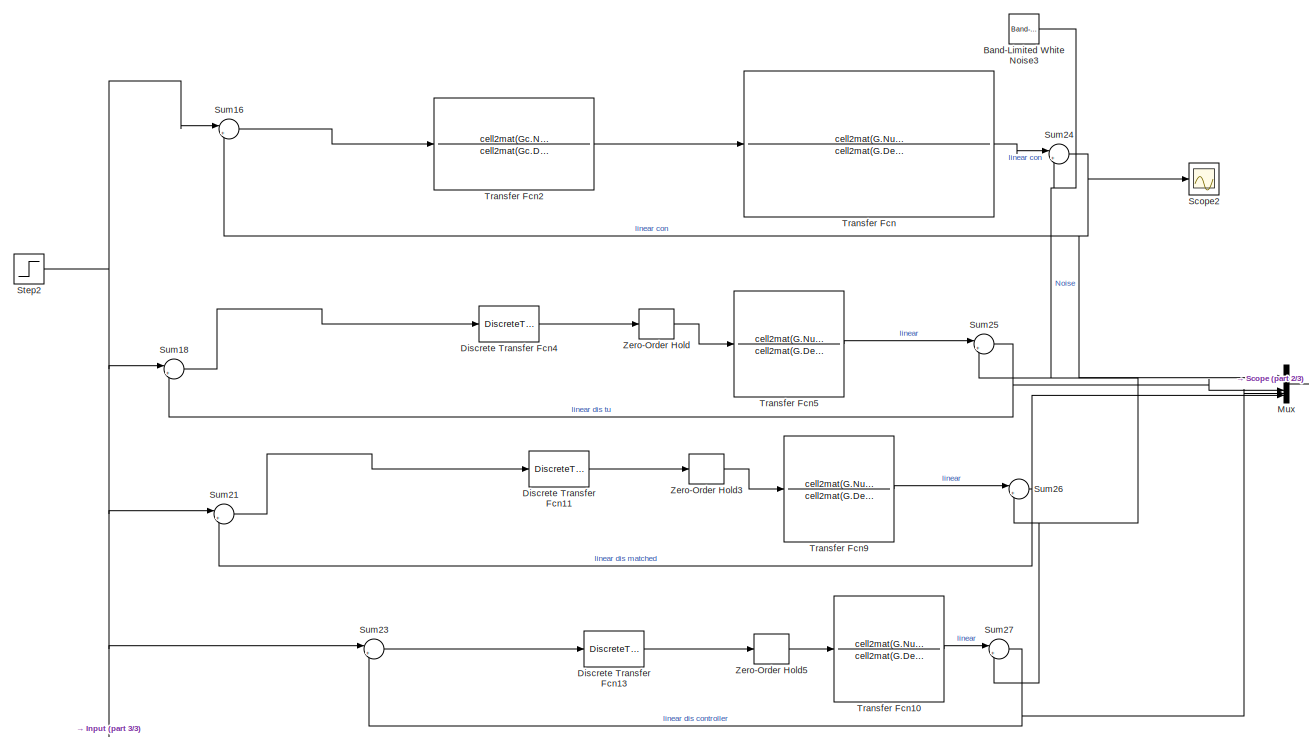
[diagram: root canvas - part 1/3, full width, top band]
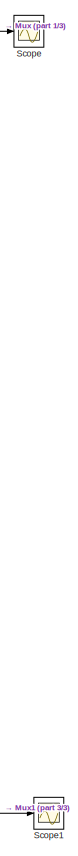
[diagram: root canvas - part 2/3, middle right region]
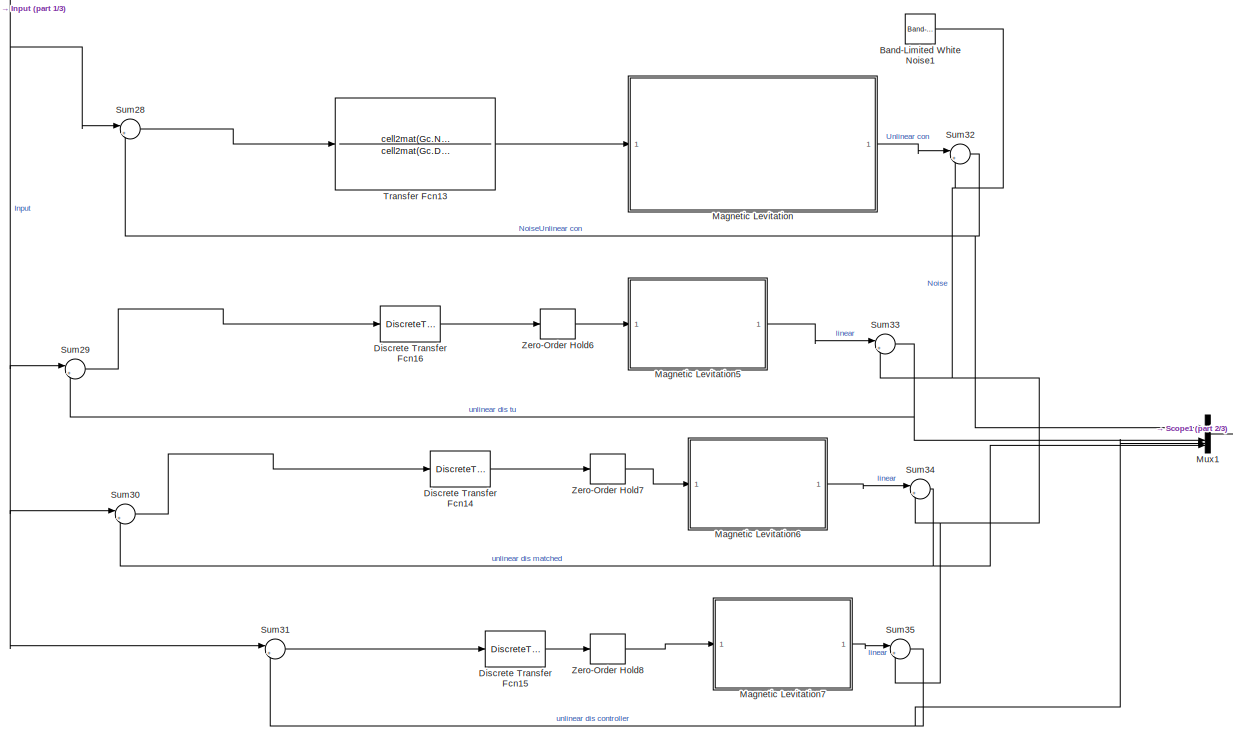
[diagram: root canvas - part 3/3, full width, bottom band]
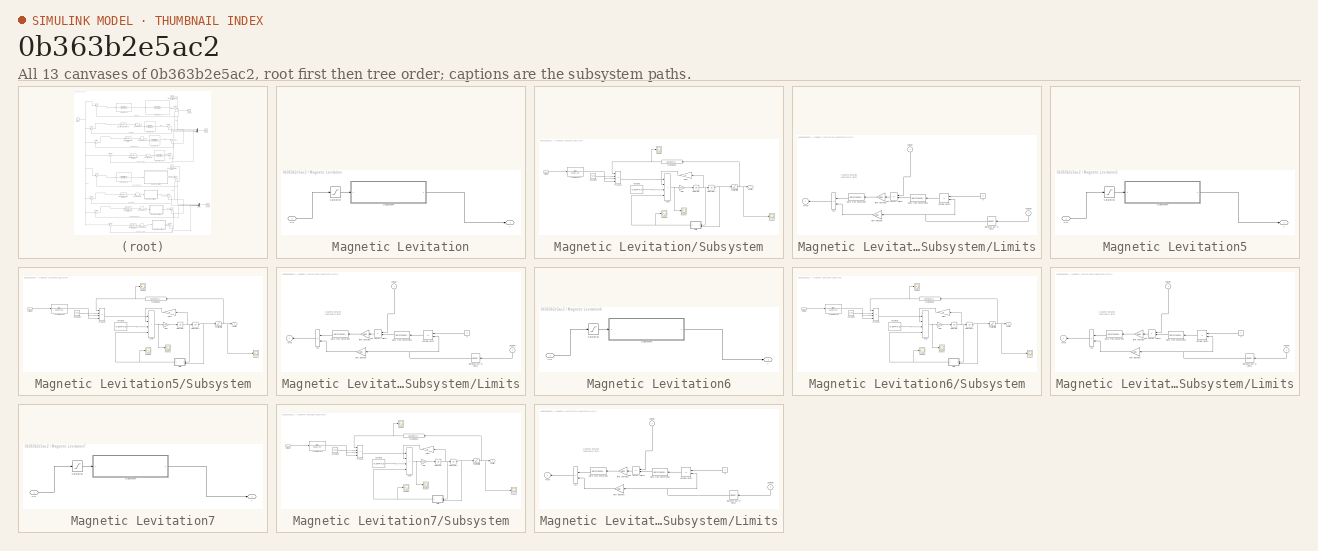
[diagram: thumbnail index - all 13 canvases of the model, root first then tree order]
MODEL slx_0b363b2e5ac2
KIND model
CONFIG AbsTol = auto
CONFIG EnableMultiTasking = off
CONFIG FixedStep = auto
CONFIG MaxStep = auto
CONFIG MinStep = auto
CONFIG RelTol = 1e-3
CONFIG SampleTimeConstraint = Unconstrained
CONFIG SolverName = VariableStepAuto
CONFIG StartTime = 0.0
CONFIG StopTime = 5
BLOCK [Reference] Band-Limited White Noise1  REF=simulink/Sources/Band-Limited
White Noise
  SourceBlock = simulink/Sources/Band-Limited\nWhite Noise
  SourceType = Band-Limited White Noise.
BLOCK [Reference] Band-Limited White Noise3  REF=simulink/Sources/Band-Limited
White Noise
  SourceBlock = simulink/Sources/Band-Limited\nWhite Noise
  SourceType = Band-Limited White Noise.
BLOCK [DiscreteTransferFcn] Discrete Transfer Fcn11
  Denominator = cell2mat(Gc_z2.Denominator)
  InputPortMap = u0
  Numerator = cell2mat(Gc_z2.Numerator)
BLOCK [DiscreteTransferFcn] Discrete Transfer Fcn13
  Denominator = cell2mat(Gc_z_designed.Denominator)
  InputPortMap = u0
  Numerator = cell2mat(Gc_z_designed.Numerator)
BLOCK [DiscreteTransferFcn] Discrete Transfer Fcn14
  Denominator = cell2mat(Gc_z2.Denominator)
  InputPortMap = u0
  Numerator = cell2mat(Gc_z2.Numerator)
BLOCK [DiscreteTransferFcn] Discrete Transfer Fcn15
  Denominator = cell2mat(Gc_z_designed.Denominator)
  InputPortMap = u0
  Numerator = cell2mat(Gc_z_designed.Numerator)
BLOCK [DiscreteTransferFcn] Discrete Transfer Fcn16
  Denominator = cell2mat(Gc_z1.Denominator)
  InputPortMap = u0
  Numerator = cell2mat(Gc_z1.Numerator)
BLOCK [DiscreteTransferFcn] Discrete Transfer Fcn4
  Denominator = cell2mat(Gc_z1.Denominator)
  InputPortMap = u0
  Numerator = cell2mat(Gc_z1.Numerator)
BLOCK [SubSystem] Magnetic Levitation
  Permissions = NoReadOrWrite
BLOCK [Saturate] Magnetic Levitation/Saturation
  LowerLimit = -6
  UpperLimit = 10
  ZeroCross = off
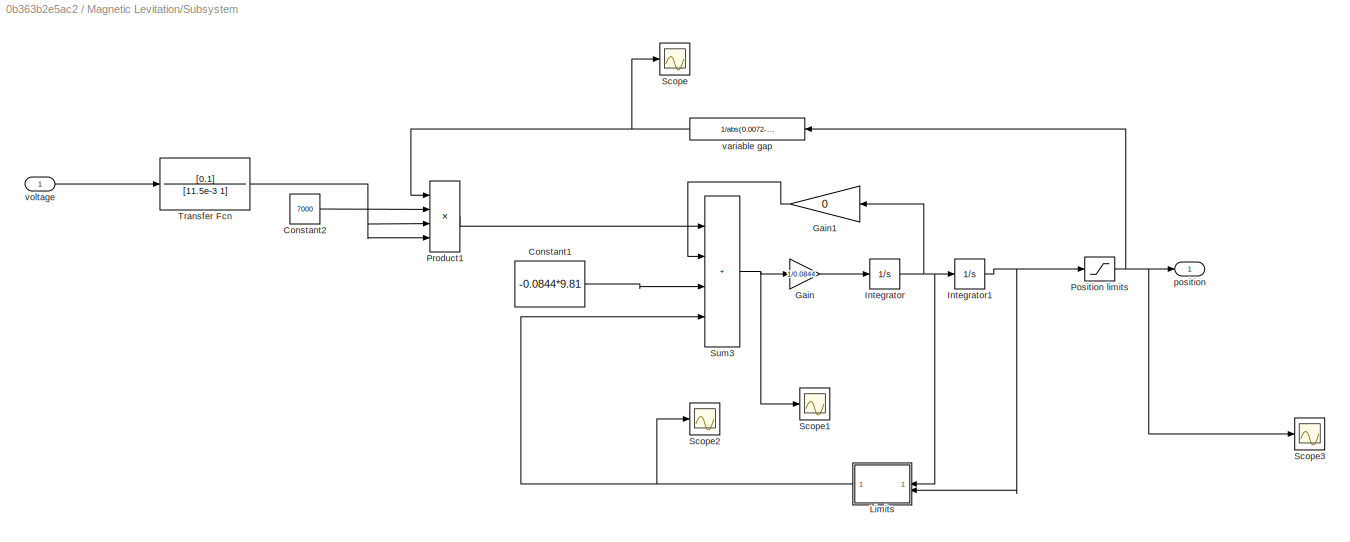
BLOCK [SubSystem] Magnetic Levitation/Subsystem
BLOCK [Constant] Magnetic Levitation/Subsystem/Constant1
  Value = -0.0844*9.81
BLOCK [Constant] Magnetic Levitation/Subsystem/Constant2
  Value = 7000
BLOCK [Gain] Magnetic Levitation/Subsystem/Gain
  Gain = 1/0.0844
BLOCK [Gain] Magnetic Levitation/Subsystem/Gain1
  Gain = 0
  NameLocation = top
BLOCK [Integrator] Magnetic Levitation/Subsystem/Integrator
BLOCK [Integrator] Magnetic Levitation/Subsystem/Integrator1
  LimitOutput = on
  LowerSaturationLimit = 0
  UpperSaturationLimit = 0.005
BLOCK [SubSystem] Magnetic Levitation/Subsystem/Limits
  ShowPortLabels = none
BLOCK [Constant] Magnetic Levitation/Subsystem/Limits/0
  Value = 0
BLOCK [DataTypeConversion] Magnetic Levitation/Subsystem/Limits/Data Type Conversion
  NameLocation = top
  OutDataTypeStr = double
  RndMeth = Floor
  SaturateOnIntegerOverflow = off
BLOCK [DataTypeConversion] Magnetic Levitation/Subsystem/Limits/Data Type Conversion1
  NameLocation = top
  OutDataTypeStr = double
  RndMeth = Floor
  SaturateOnIntegerOverflow = off
BLOCK [DeadZone] Magnetic Levitation/Subsystem/Limits/Distance out of limits
  LowerValue = 0.0002
  UpperValue = 5e-3
  ZeroCross = off
BLOCK [Sum] Magnetic Levitation/Subsystem/Limits/Fc1
  IconShape = rectangular
  InputSameDT = on
  Inputs = --
  OutDataTypeStr = Inherit: Same as first input
  SaturateOnIntegerOverflow = on
BLOCK [Product] Magnetic Levitation/Subsystem/Limits/Just on//off switch 
  InputSameDT = on
  OutDataTypeStr = Inherit: Same as first input
  SaturateOnIntegerOverflow = on
BLOCK [RelationalOperator] Magnetic Levitation/Subsystem/Limits/Outside Limits
  Operator = ~=
BLOCK [Outport] Magnetic Levitation/Subsystem/Limits/force
  VectorParamsAs1DForOutWhenUnconnected = off
BLOCK [Gain] Magnetic Levitation/Subsystem/Limits/limit damping
  Gain = 2800
  OutDataTypeStr = Inherit: Same as input
  ParamDataTypeStr = Inherit: Same as input
  SaturateOnIntegerOverflow = on
BLOCK [Gain] Magnetic Levitation/Subsystem/Limits/limit elasticity
  Gain = 500
  OutDataTypeStr = Inherit: Same as input
  ParamDataTypeStr = Inherit: Same as input
  SaturateOnIntegerOverflow = on
BLOCK [Inport] Magnetic Levitation/Subsystem/Limits/position
  NameLocation = right
  Port = 2
BLOCK [Inport] Magnetic Levitation/Subsystem/Limits/velocity
  NameLocation = right
BLOCK [Saturate] Magnetic Levitation/Subsystem/Position limits
  LowerLimit = 0.00001
  UpperLimit = 0.00499
  ZeroCross = off
BLOCK [Product] Magnetic Levitation/Subsystem/Product1
  Inputs = 4
BLOCK [Scope] Magnetic Levitation/Subsystem/Scope
  Floating = off
  NumInputPorts = 1
  ScopeSpecificationString = Simulink.scopes.TimeScopeBlockCfg('CurrentConfiguration', extmgr.ConfigurationSet(extmgr.Configuration('Core','General UI',true),extmgr.Configuration('Core','Source UI',true),extmgr.Configuration('Sources','WiredSimulink',true,'DataLoggingVariableName','ScopeData1'),extmgr.Configuration('Visuals','Time Domain',true,'SerializedDisplays',{struct('MinYLimReal','-40.54054','MaxYLimReal','374.87487','Y...<+1381ch>  <repeated x4 — deduplicated; at blocks: Scope>
BLOCK [Scope] Magnetic Levitation/Subsystem/Scope1
  Floating = off
  NumInputPorts = 1
  ScopeSpecificationString = Simulink.scopes.TimeScopeBlockCfg('CurrentConfiguration', extmgr.ConfigurationSet(extmgr.Configuration('Core','General UI',true),extmgr.Configuration('Core','Source UI',true),extmgr.Configuration('Sources','WiredSimulink',true,'DataLoggingVariableName','ScopeData2'),extmgr.Configuration('Visuals','Time Domain',true,'SerializedDisplays',{struct('MinYLimReal','-21376391083219120442781708779858395089...<+3841ch>  <repeated x4 — deduplicated; at blocks: Scope1>
BLOCK [Scope] Magnetic Levitation/Subsystem/Scope2
  Floating = off
  NumInputPorts = 1
  ScopeSpecificationString = Simulink.scopes.TimeScopeBlockCfg('CurrentConfiguration', extmgr.ConfigurationSet(extmgr.Configuration('Core','General UI',true),extmgr.Configuration('Core','Source UI',true),extmgr.Configuration('Sources','WiredSimulink',true,'DataLoggingVariableName','ScopeData3'),extmgr.Configuration('Visuals','Time Domain',true,'SerializedDisplays',{struct('MinYLimReal','-0.1107','MaxYLimReal','1.19629','YLabe...<+1363ch>  <repeated x4 — deduplicated; at blocks: Scope2>
BLOCK [Scope] Magnetic Levitation/Subsystem/Scope3
  Floating = off
  NumInputPorts = 1
  ScopeSpecificationString = Simulink.scopes.TimeScopeBlockCfg('CurrentConfiguration', extmgr.ConfigurationSet(extmgr.Configuration('Core','General UI',true),extmgr.Configuration('Core','Source UI',true),extmgr.Configuration('Sources','WiredSimulink',true,'DataLoggingVariableName','ScopeData2'),extmgr.Configuration('Visuals','Time Domain',true,'SerializedDisplays',{struct('MinYLimReal','-0.00029','MaxYLimReal','0.00267','YLab...<+1402ch>  <repeated x4 — deduplicated; at blocks: Scope3>
BLOCK [Sum] Magnetic Levitation/Subsystem/Sum3
  IconShape = rectangular
  Inputs = ++++
BLOCK [TransferFcn] Magnetic Levitation/Subsystem/Transfer Fcn
  Denominator = [11.5e-3 1]
  Numerator = [0.1]
BLOCK [Outport] Magnetic Levitation/Subsystem/position 
  VectorParamsAs1DForOutWhenUnconnected = off
BLOCK [Fcn] Magnetic Levitation/Subsystem/variable gap
  Expr = 1/abs(0.0072-u)
BLOCK [Inport] Magnetic Levitation/Subsystem/voltage
BLOCK [Inport] Magnetic Levitation/Vin
BLOCK [Outport] Magnetic Levitation/y
  VectorParamsAs1DForOutWhenUnconnected = off
BLOCK [SubSystem] Magnetic Levitation5
  Permissions = NoReadOrWrite
BLOCK [Saturate] Magnetic Levitation5/Saturation
  LowerLimit = -6
  UpperLimit = 10
  ZeroCross = off
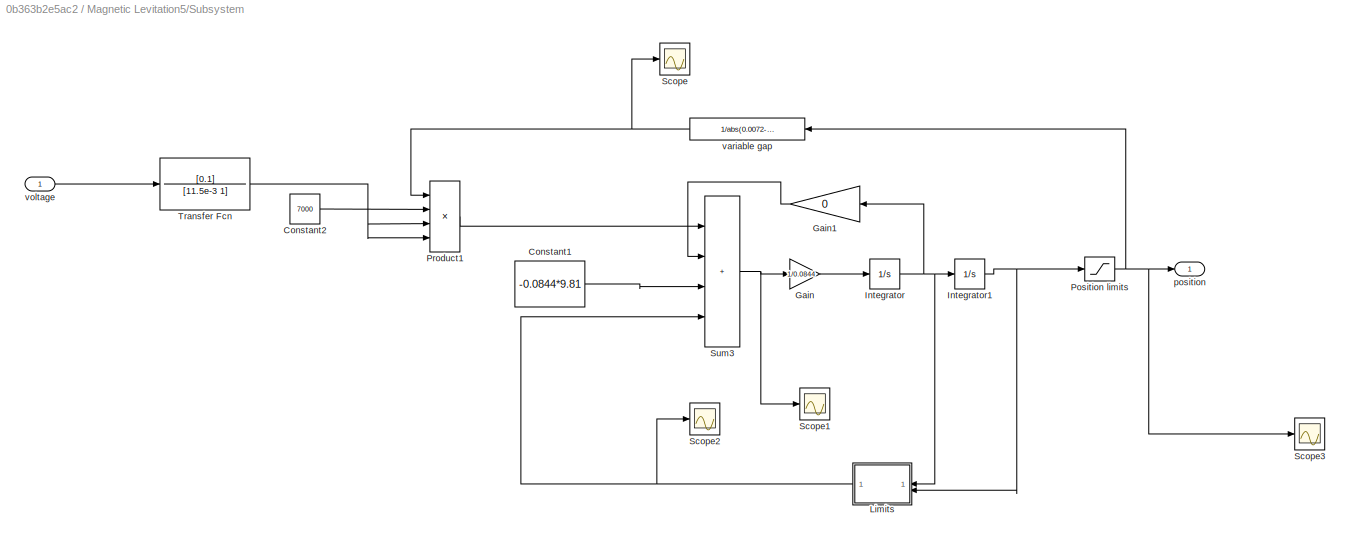
BLOCK [SubSystem] Magnetic Levitation5/Subsystem
BLOCK [Constant] Magnetic Levitation5/Subsystem/Constant1
  Value = -0.0844*9.81
BLOCK [Constant] Magnetic Levitation5/Subsystem/Constant2
  Value = 7000
BLOCK [Gain] Magnetic Levitation5/Subsystem/Gain
  Gain = 1/0.0844
BLOCK [Gain] Magnetic Levitation5/Subsystem/Gain1
  Gain = 0
  NameLocation = top
BLOCK [Integrator] Magnetic Levitation5/Subsystem/Integrator
BLOCK [Integrator] Magnetic Levitation5/Subsystem/Integrator1
  LimitOutput = on
  LowerSaturationLimit = 0
  UpperSaturationLimit = 0.005
BLOCK [SubSystem] Magnetic Levitation5/Subsystem/Limits
  ShowPortLabels = none
BLOCK [Constant] Magnetic Levitation5/Subsystem/Limits/0
  Value = 0
BLOCK [DataTypeConversion] Magnetic Levitation5/Subsystem/Limits/Data Type Conversion
  NameLocation = top
  OutDataTypeStr = double
  RndMeth = Floor
  SaturateOnIntegerOverflow = off
BLOCK [DataTypeConversion] Magnetic Levitation5/Subsystem/Limits/Data Type Conversion1
  NameLocation = top
  OutDataTypeStr = double
  RndMeth = Floor
  SaturateOnIntegerOverflow = off
BLOCK [DeadZone] Magnetic Levitation5/Subsystem/Limits/Distance out of limits
  LowerValue = 0.0002
  UpperValue = 5e-3
  ZeroCross = off
BLOCK [Sum] Magnetic Levitation5/Subsystem/Limits/Fc1
  IconShape = rectangular
  InputSameDT = on
  Inputs = --
  OutDataTypeStr = Inherit: Same as first input
  SaturateOnIntegerOverflow = on
BLOCK [Product] Magnetic Levitation5/Subsystem/Limits/Just on//off switch 
  InputSameDT = on
  OutDataTypeStr = Inherit: Same as first input
  SaturateOnIntegerOverflow = on
BLOCK [RelationalOperator] Magnetic Levitation5/Subsystem/Limits/Outside Limits
  Operator = ~=
BLOCK [Outport] Magnetic Levitation5/Subsystem/Limits/force
  VectorParamsAs1DForOutWhenUnconnected = off
BLOCK [Gain] Magnetic Levitation5/Subsystem/Limits/limit damping
  Gain = 2800
  OutDataTypeStr = Inherit: Same as input
  ParamDataTypeStr = Inherit: Same as input
  SaturateOnIntegerOverflow = on
BLOCK [Gain] Magnetic Levitation5/Subsystem/Limits/limit elasticity
  Gain = 500
  OutDataTypeStr = Inherit: Same as input
  ParamDataTypeStr = Inherit: Same as input
  SaturateOnIntegerOverflow = on
BLOCK [Inport] Magnetic Levitation5/Subsystem/Limits/position
  NameLocation = right
  Port = 2
BLOCK [Inport] Magnetic Levitation5/Subsystem/Limits/velocity
  NameLocation = right
BLOCK [Saturate] Magnetic Levitation5/Subsystem/Position limits
  LowerLimit = 0.00001
  UpperLimit = 0.00499
  ZeroCross = off
BLOCK [Product] Magnetic Levitation5/Subsystem/Product1
  Inputs = 4
BLOCK [Scope] Magnetic Levitation5/Subsystem/Scope
  Floating = off
  NumInputPorts = 1
BLOCK [Scope] Magnetic Levitation5/Subsystem/Scope1
  Floating = off
  NumInputPorts = 1
BLOCK [Scope] Magnetic Levitation5/Subsystem/Scope2
  Floating = off
  NumInputPorts = 1
BLOCK [Scope] Magnetic Levitation5/Subsystem/Scope3
  Floating = off
  NumInputPorts = 1
BLOCK [Sum] Magnetic Levitation5/Subsystem/Sum3
  IconShape = rectangular
  Inputs = ++++
BLOCK [TransferFcn] Magnetic Levitation5/Subsystem/Transfer Fcn
  Denominator = [11.5e-3 1]
  Numerator = [0.1]
BLOCK [Outport] Magnetic Levitation5/Subsystem/position 
  VectorParamsAs1DForOutWhenUnconnected = off
BLOCK [Fcn] Magnetic Levitation5/Subsystem/variable gap
  Expr = 1/abs(0.0072-u)
BLOCK [Inport] Magnetic Levitation5/Subsystem/voltage
BLOCK [Inport] Magnetic Levitation5/Vin
BLOCK [Outport] Magnetic Levitation5/y
  VectorParamsAs1DForOutWhenUnconnected = off
BLOCK [SubSystem] Magnetic Levitation6
  Permissions = NoReadOrWrite
BLOCK [Saturate] Magnetic Levitation6/Saturation
  LowerLimit = -6
  UpperLimit = 10
  ZeroCross = off
BLOCK [SubSystem] Magnetic Levitation6/Subsystem
BLOCK [Constant] Magnetic Levitation6/Subsystem/Constant1
  Value = -0.0844*9.81
BLOCK [Constant] Magnetic Levitation6/Subsystem/Constant2
  Value = 7000
BLOCK [Gain] Magnetic Levitation6/Subsystem/Gain
  Gain = 1/0.0844
BLOCK [Gain] Magnetic Levitation6/Subsystem/Gain1
  Gain = 0
  NameLocation = top
BLOCK [Integrator] Magnetic Levitation6/Subsystem/Integrator
BLOCK [Integrator] Magnetic Levitation6/Subsystem/Integrator1
  LimitOutput = on
  LowerSaturationLimit = 0
  UpperSaturationLimit = 0.005
BLOCK [SubSystem] Magnetic Levitation6/Subsystem/Limits
  ShowPortLabels = none
BLOCK [Constant] Magnetic Levitation6/Subsystem/Limits/0
  Value = 0
BLOCK [DataTypeConversion] Magnetic Levitation6/Subsystem/Limits/Data Type Conversion
  NameLocation = top
  OutDataTypeStr = double
  RndMeth = Floor
  SaturateOnIntegerOverflow = off
BLOCK [DataTypeConversion] Magnetic Levitation6/Subsystem/Limits/Data Type Conversion1
  NameLocation = top
  OutDataTypeStr = double
  RndMeth = Floor
  SaturateOnIntegerOverflow = off
BLOCK [DeadZone] Magnetic Levitation6/Subsystem/Limits/Distance out of limits
  LowerValue = 0.0002
  UpperValue = 5e-3
  ZeroCross = off
BLOCK [Sum] Magnetic Levitation6/Subsystem/Limits/Fc1
  IconShape = rectangular
  InputSameDT = on
  Inputs = --
  OutDataTypeStr = Inherit: Same as first input
  SaturateOnIntegerOverflow = on
BLOCK [Product] Magnetic Levitation6/Subsystem/Limits/Just on//off switch 
  InputSameDT = on
  OutDataTypeStr = Inherit: Same as first input
  SaturateOnIntegerOverflow = on
BLOCK [RelationalOperator] Magnetic Levitation6/Subsystem/Limits/Outside Limits
  Operator = ~=
BLOCK [Outport] Magnetic Levitation6/Subsystem/Limits/force
  VectorParamsAs1DForOutWhenUnconnected = off
BLOCK [Gain] Magnetic Levitation6/Subsystem/Limits/limit damping
  Gain = 2800
  OutDataTypeStr = Inherit: Same as input
  ParamDataTypeStr = Inherit: Same as input
  SaturateOnIntegerOverflow = on
BLOCK [Gain] Magnetic Levitation6/Subsystem/Limits/limit elasticity
  Gain = 500
  OutDataTypeStr = Inherit: Same as input
  ParamDataTypeStr = Inherit: Same as input
  SaturateOnIntegerOverflow = on
BLOCK [Inport] Magnetic Levitation6/Subsystem/Limits/position
  NameLocation = right
  Port = 2
BLOCK [Inport] Magnetic Levitation6/Subsystem/Limits/velocity
  NameLocation = right
BLOCK [Saturate] Magnetic Levitation6/Subsystem/Position limits
  LowerLimit = 0.00001
  UpperLimit = 0.00499
  ZeroCross = off
BLOCK [Product] Magnetic Levitation6/Subsystem/Product1
  Inputs = 4
BLOCK [Scope] Magnetic Levitation6/Subsystem/Scope
  Floating = off
  NumInputPorts = 1
BLOCK [Scope] Magnetic Levitation6/Subsystem/Scope1
  Floating = off
  NumInputPorts = 1
BLOCK [Scope] Magnetic Levitation6/Subsystem/Scope2
  Floating = off
  NumInputPorts = 1
BLOCK [Scope] Magnetic Levitation6/Subsystem/Scope3
  Floating = off
  NumInputPorts = 1
BLOCK [Sum] Magnetic Levitation6/Subsystem/Sum3
  IconShape = rectangular
  Inputs = ++++
BLOCK [TransferFcn] Magnetic Levitation6/Subsystem/Transfer Fcn
  Denominator = [11.5e-3 1]
  Numerator = [0.1]
BLOCK [Outport] Magnetic Levitation6/Subsystem/position 
  VectorParamsAs1DForOutWhenUnconnected = off
BLOCK [Fcn] Magnetic Levitation6/Subsystem/variable gap
  Expr = 1/abs(0.0072-u)
BLOCK [Inport] Magnetic Levitation6/Subsystem/voltage
BLOCK [Inport] Magnetic Levitation6/Vin
BLOCK [Outport] Magnetic Levitation6/y
  VectorParamsAs1DForOutWhenUnconnected = off
BLOCK [SubSystem] Magnetic Levitation7
  Permissions = NoReadOrWrite
BLOCK [Saturate] Magnetic Levitation7/Saturation
  LowerLimit = -6
  UpperLimit = 10
  ZeroCross = off
BLOCK [SubSystem] Magnetic Levitation7/Subsystem
BLOCK [Constant] Magnetic Levitation7/Subsystem/Constant1
  Value = -0.0844*9.81
BLOCK [Constant] Magnetic Levitation7/Subsystem/Constant2
  Value = 7000
BLOCK [Gain] Magnetic Levitation7/Subsystem/Gain
  Gain = 1/0.0844
BLOCK [Gain] Magnetic Levitation7/Subsystem/Gain1
  Gain = 0
  NameLocation = top
BLOCK [Integrator] Magnetic Levitation7/Subsystem/Integrator
BLOCK [Integrator] Magnetic Levitation7/Subsystem/Integrator1
  LimitOutput = on
  LowerSaturationLimit = 0
  UpperSaturationLimit = 0.005
BLOCK [SubSystem] Magnetic Levitation7/Subsystem/Limits
  ShowPortLabels = none
BLOCK [Constant] Magnetic Levitation7/Subsystem/Limits/0
  Value = 0
BLOCK [DataTypeConversion] Magnetic Levitation7/Subsystem/Limits/Data Type Conversion
  NameLocation = top
  OutDataTypeStr = double
  RndMeth = Floor
  SaturateOnIntegerOverflow = off
BLOCK [DataTypeConversion] Magnetic Levitation7/Subsystem/Limits/Data Type Conversion1
  NameLocation = top
  OutDataTypeStr = double
  RndMeth = Floor
  SaturateOnIntegerOverflow = off
BLOCK [DeadZone] Magnetic Levitation7/Subsystem/Limits/Distance out of limits
  LowerValue = 0.0002
  UpperValue = 5e-3
  ZeroCross = off
BLOCK [Sum] Magnetic Levitation7/Subsystem/Limits/Fc1
  IconShape = rectangular
  InputSameDT = on
  Inputs = --
  OutDataTypeStr = Inherit: Same as first input
  SaturateOnIntegerOverflow = on
BLOCK [Product] Magnetic Levitation7/Subsystem/Limits/Just on//off switch 
  InputSameDT = on
  OutDataTypeStr = Inherit: Same as first input
  SaturateOnIntegerOverflow = on
BLOCK [RelationalOperator] Magnetic Levitation7/Subsystem/Limits/Outside Limits
  Operator = ~=
BLOCK [Outport] Magnetic Levitation7/Subsystem/Limits/force
  VectorParamsAs1DForOutWhenUnconnected = off
BLOCK [Gain] Magnetic Levitation7/Subsystem/Limits/limit damping
  Gain = 2800
  OutDataTypeStr = Inherit: Same as input
  ParamDataTypeStr = Inherit: Same as input
  SaturateOnIntegerOverflow = on
BLOCK [Gain] Magnetic Levitation7/Subsystem/Limits/limit elasticity
  Gain = 500
  OutDataTypeStr = Inherit: Same as input
  ParamDataTypeStr = Inherit: Same as input
  SaturateOnIntegerOverflow = on
BLOCK [Inport] Magnetic Levitation7/Subsystem/Limits/position
  NameLocation = right
  Port = 2
BLOCK [Inport] Magnetic Levitation7/Subsystem/Limits/velocity
  NameLocation = right
BLOCK [Saturate] Magnetic Levitation7/Subsystem/Position limits
  LowerLimit = 0.00001
  UpperLimit = 0.00499
  ZeroCross = off
BLOCK [Product] Magnetic Levitation7/Subsystem/Product1
  Inputs = 4
BLOCK [Scope] Magnetic Levitation7/Subsystem/Scope
  Floating = off
  NumInputPorts = 1
BLOCK [Scope] Magnetic Levitation7/Subsystem/Scope1
  Floating = off
  NumInputPorts = 1
BLOCK [Scope] Magnetic Levitation7/Subsystem/Scope2
  Floating = off
  NumInputPorts = 1
BLOCK [Scope] Magnetic Levitation7/Subsystem/Scope3
  Floating = off
  NumInputPorts = 1
BLOCK [Sum] Magnetic Levitation7/Subsystem/Sum3
  IconShape = rectangular
  Inputs = ++++
BLOCK [TransferFcn] Magnetic Levitation7/Subsystem/Transfer Fcn
  Denominator = [11.5e-3 1]
  Numerator = [0.1]
BLOCK [Outport] Magnetic Levitation7/Subsystem/position 
  VectorParamsAs1DForOutWhenUnconnected = off
BLOCK [Fcn] Magnetic Levitation7/Subsystem/variable gap
  Expr = 1/abs(0.0072-u)
BLOCK [Inport] Magnetic Levitation7/Subsystem/voltage
BLOCK [Inport] Magnetic Levitation7/Vin
BLOCK [Outport] Magnetic Levitation7/y
  VectorParamsAs1DForOutWhenUnconnected = off
BLOCK [Mux] Mux
  DisplayOption = bar
BLOCK [Mux] Mux1
  DisplayOption = bar
BLOCK [Scope] Scope
  Floating = off
  NumInputPorts = 1
  ScopeSpecificationString = Simulink.scopes.TimeScopeBlockCfg('CurrentConfiguration', extmgr.ConfigurationSet(extmgr.Configuration('Core','General UI',true),extmgr.Configuration('Core','Source UI',true),extmgr.Configuration('Sources','WiredSimulink',true,'DataLoggingVariableName','ScopeData1'),extmgr.Configuration('Visuals','Time Domain',true,'SerializedDisplays',{struct('MinYLimReal','-0.0005','MaxYLimReal','0.00447','YLabe...<+1706ch>
BLOCK [Scope] Scope1
  Floating = off
  NumInputPorts = 1
  ScopeSpecificationString = Simulink.scopes.TimeScopeBlockCfg('CurrentConfiguration', extmgr.ConfigurationSet(extmgr.Configuration('Core','General UI',true),extmgr.Configuration('Core','Source UI',true),extmgr.Configuration('Sources','WiredSimulink',true,'DataLoggingVariableName','ScopeData2'),extmgr.Configuration('Visuals','Time Domain',true,'SerializedDisplays',{struct('MinYLimReal','-0.00051','MaxYLimReal','0.00465','YLab...<+1702ch>
BLOCK [Scope] Scope2
  Floating = off
  NumInputPorts = 1
  ScopeSpecificationString = Simulink.scopes.TimeScopeBlockCfg('CurrentConfiguration', extmgr.ConfigurationSet(extmgr.Configuration('Core','General UI',true),extmgr.Configuration('Core','Source UI',true),extmgr.Configuration('Sources','WiredSimulink',true,'DataLoggingVariableName','ScopeData3'),extmgr.Configuration('Visuals','Time Domain',true,'SerializedDisplays',{struct('MinYLimReal','-0.00048','MaxYLimReal','0.00432','YLab...<+1488ch>
BLOCK [Step] Step2
  After = 2e-3
  SampleTime = 0
BLOCK [Sum] Sum16
  Inputs = |+-
BLOCK [Sum] Sum18
  Inputs = |+-
BLOCK [Sum] Sum21
  Inputs = |+-
BLOCK [Sum] Sum23
  Inputs = |+-
BLOCK [Sum] Sum24
  Inputs = |++
BLOCK [Sum] Sum25
  Inputs = |++
BLOCK [Sum] Sum26
  Inputs = |++
BLOCK [Sum] Sum27
  Inputs = |++
BLOCK [Sum] Sum28
  Inputs = |+-
BLOCK [Sum] Sum29
  Inputs = |+-
BLOCK [Sum] Sum30
  Inputs = |+-
BLOCK [Sum] Sum31
  Inputs = |+-
BLOCK [Sum] Sum32
  Inputs = |++
BLOCK [Sum] Sum33
  Inputs = |++
BLOCK [Sum] Sum34
  Inputs = |++
BLOCK [Sum] Sum35
  Inputs = |++
BLOCK [TransferFcn] Transfer Fcn
  Denominator = cell2mat(G.Denominator)
  Numerator = cell2mat(G.Numerator)
BLOCK [TransferFcn] Transfer Fcn10
  Denominator = cell2mat(G.Denominator)
  Numerator = cell2mat(G.Numerator)
BLOCK [TransferFcn] Transfer Fcn13
  Denominator = cell2mat(Gc.Denominator)
  Numerator = cell2mat(Gc.Numerator)
BLOCK [TransferFcn] Transfer Fcn2
  Denominator = cell2mat(Gc.Denominator)
  Numerator = cell2mat(Gc.Numerator)
BLOCK [TransferFcn] Transfer Fcn5
  Denominator = cell2mat(G.Denominator)
  Numerator = cell2mat(G.Numerator)
BLOCK [TransferFcn] Transfer Fcn9
  Denominator = cell2mat(G.Denominator)
  Numerator = cell2mat(G.Numerator)
BLOCK [ZeroOrderHold] Zero-Order Hold
  SampleTime = 0.0005
BLOCK [ZeroOrderHold] Zero-Order Hold3
  SampleTime = 0.0005
BLOCK [ZeroOrderHold] Zero-Order Hold5
  SampleTime = 0.0005
BLOCK [ZeroOrderHold] Zero-Order Hold6
  SampleTime = 0.0005
BLOCK [ZeroOrderHold] Zero-Order Hold7
  SampleTime = 0.0005
BLOCK [ZeroOrderHold] Zero-Order Hold8
  SampleTime = 0.0005
ANNOTATION Magnetic Levitation/Subsystem/Limits: Magnetic levitation submodel of limits
ANNOTATION Magnetic Levitation5/Subsystem/Limits: Magnetic levitation submodel of limits
ANNOTATION Magnetic Levitation6/Subsystem/Limits: Magnetic levitation submodel of limits
ANNOTATION Magnetic Levitation7/Subsystem/Limits: Magnetic levitation submodel of limits
NET Band-Limited White Noise1:1 -> Sum32:2, Sum33:2, Sum34:2, Sum35:2
NET Band-Limited White Noise3:1 -> Sum24:2, Sum25:2, Sum26:2, Sum27:2
LINE Discrete Transfer Fcn11:1 -> Zero-Order Hold3:1
LINE Discrete Transfer Fcn13:1 -> Zero-Order Hold5:1
LINE Discrete Transfer Fcn14:1 -> Zero-Order Hold7:1
LINE Discrete Transfer Fcn15:1 -> Zero-Order Hold8:1
LINE Discrete Transfer Fcn16:1 -> Zero-Order Hold6:1
LINE Discrete Transfer Fcn4:1 -> Zero-Order Hold:1
LINE Magnetic Levitation/Saturation:1 -> Magnetic Levitation/Subsystem:1
LINE Magnetic Levitation/Subsystem/Constant1:1 -> Magnetic Levitation/Subsystem/Sum3:3
LINE Magnetic Levitation/Subsystem/Constant2:1 -> Magnetic Levitation/Subsystem/Product1:2
LINE Magnetic Levitation/Subsystem/Gain1:1 -> Magnetic Levitation/Subsystem/Sum3:2
LINE Magnetic Levitation/Subsystem/Gain:1 -> Magnetic Levitation/Subsystem/Integrator:1
NET Magnetic Levitation/Subsystem/Integrator1:1 -> Magnetic Levitation/Subsystem/Limits:2, Magnetic Levitation/Subsystem/Position limits:1
NET Magnetic Levitation/Subsystem/Integrator:1 -> Magnetic Levitation/Subsystem/Gain1:1, Magnetic Levitation/Subsystem/Integrator1:1, Magnetic Levitation/Subsystem/Limits:1
LINE Magnetic Levitation/Subsystem/Limits/0:1 -> Magnetic Levitation/Subsystem/Limits/Outside Limits:1
LINE Magnetic Levitation/Subsystem/Limits/Data Type Conversion1:1 -> Magnetic Levitation/Subsystem/Limits/Just on//off switch :2
LINE Magnetic Levitation/Subsystem/Limits/Data Type Conversion:1 -> Magnetic Levitation/Subsystem/Limits/Fc1:1
NET Magnetic Levitation/Subsystem/Limits/Distance out of limits:1 -> Magnetic Levitation/Subsystem/Limits/Outside Limits:2, Magnetic Levitation/Subsystem/Limits/limit elasticity:1
LINE Magnetic Levitation/Subsystem/Limits/Fc1:1 -> Magnetic Levitation/Subsystem/Limits/force:1
LINE Magnetic Levitation/Subsystem/Limits/Just on//off switch :1 -> Magnetic Levitation/Subsystem/Limits/limit damping:1
LINE Magnetic Levitation/Subsystem/Limits/Outside Limits:1 -> Magnetic Levitation/Subsystem/Limits/Data Type Conversion1:1
LINE Magnetic Levitation/Subsystem/Limits/limit damping:1 -> Magnetic Levitation/Subsystem/Limits/Data Type Conversion:1
LINE Magnetic Levitation/Subsystem/Limits/limit elasticity:1 -> Magnetic Levitation/Subsystem/Limits/Fc1:2
LINE Magnetic Levitation/Subsystem/Limits/position:1 -> Magnetic Levitation/Subsystem/Limits/Distance out of limits:1
LINE Magnetic Levitation/Subsystem/Limits/velocity:1 -> Magnetic Levitation/Subsystem/Limits/Just on//off switch :1
NET Magnetic Levitation/Subsystem/Limits:1 -> Magnetic Levitation/Subsystem/Scope2:1, Magnetic Levitation/Subsystem/Sum3:4
NET Magnetic Levitation/Subsystem/Position limits:1 -> Magnetic Levitation/Subsystem/Scope3:1, Magnetic Levitation/Subsystem/position :1, Magnetic Levitation/Subsystem/variable gap:1
LINE Magnetic Levitation/Subsystem/Product1:1 -> Magnetic Levitation/Subsystem/Sum3:1
NET Magnetic Levitation/Subsystem/Sum3:1 -> Magnetic Levitation/Subsystem/Gain:1, Magnetic Levitation/Subsystem/Scope1:1
NET Magnetic Levitation/Subsystem/Transfer Fcn:1 -> Magnetic Levitation/Subsystem/Product1:3, Magnetic Levitation/Subsystem/Product1:4
NET Magnetic Levitation/Subsystem/variable gap:1 -> Magnetic Levitation/Subsystem/Product1:1, Magnetic Levitation/Subsystem/Scope:1
LINE Magnetic Levitation/Subsystem/voltage:1 -> Magnetic Levitation/Subsystem/Transfer Fcn:1
LINE Magnetic Levitation/Subsystem:1 -> Magnetic Levitation/y:1
LINE Magnetic Levitation/Vin:1 -> Magnetic Levitation/Saturation:1
LINE Magnetic Levitation5/Saturation:1 -> Magnetic Levitation5/Subsystem:1
LINE Magnetic Levitation5/Subsystem/Constant1:1 -> Magnetic Levitation5/Subsystem/Sum3:3
LINE Magnetic Levitation5/Subsystem/Constant2:1 -> Magnetic Levitation5/Subsystem/Product1:2
LINE Magnetic Levitation5/Subsystem/Gain1:1 -> Magnetic Levitation5/Subsystem/Sum3:2
LINE Magnetic Levitation5/Subsystem/Gain:1 -> Magnetic Levitation5/Subsystem/Integrator:1
NET Magnetic Levitation5/Subsystem/Integrator1:1 -> Magnetic Levitation5/Subsystem/Limits:2, Magnetic Levitation5/Subsystem/Position limits:1
NET Magnetic Levitation5/Subsystem/Integrator:1 -> Magnetic Levitation5/Subsystem/Gain1:1, Magnetic Levitation5/Subsystem/Integrator1:1, Magnetic Levitation5/Subsystem/Limits:1
LINE Magnetic Levitation5/Subsystem/Limits/0:1 -> Magnetic Levitation5/Subsystem/Limits/Outside Limits:1
LINE Magnetic Levitation5/Subsystem/Limits/Data Type Conversion1:1 -> Magnetic Levitation5/Subsystem/Limits/Just on//off switch :2
LINE Magnetic Levitation5/Subsystem/Limits/Data Type Conversion:1 -> Magnetic Levitation5/Subsystem/Limits/Fc1:1
NET Magnetic Levitation5/Subsystem/Limits/Distance out of limits:1 -> Magnetic Levitation5/Subsystem/Limits/Outside Limits:2, Magnetic Levitation5/Subsystem/Limits/limit elasticity:1
LINE Magnetic Levitation5/Subsystem/Limits/Fc1:1 -> Magnetic Levitation5/Subsystem/Limits/force:1
LINE Magnetic Levitation5/Subsystem/Limits/Just on//off switch :1 -> Magnetic Levitation5/Subsystem/Limits/limit damping:1
LINE Magnetic Levitation5/Subsystem/Limits/Outside Limits:1 -> Magnetic Levitation5/Subsystem/Limits/Data Type Conversion1:1
LINE Magnetic Levitation5/Subsystem/Limits/limit damping:1 -> Magnetic Levitation5/Subsystem/Limits/Data Type Conversion:1
LINE Magnetic Levitation5/Subsystem/Limits/limit elasticity:1 -> Magnetic Levitation5/Subsystem/Limits/Fc1:2
LINE Magnetic Levitation5/Subsystem/Limits/position:1 -> Magnetic Levitation5/Subsystem/Limits/Distance out of limits:1
LINE Magnetic Levitation5/Subsystem/Limits/velocity:1 -> Magnetic Levitation5/Subsystem/Limits/Just on//off switch :1
NET Magnetic Levitation5/Subsystem/Limits:1 -> Magnetic Levitation5/Subsystem/Scope2:1, Magnetic Levitation5/Subsystem/Sum3:4
NET Magnetic Levitation5/Subsystem/Position limits:1 -> Magnetic Levitation5/Subsystem/Scope3:1, Magnetic Levitation5/Subsystem/position :1, Magnetic Levitation5/Subsystem/variable gap:1
LINE Magnetic Levitation5/Subsystem/Product1:1 -> Magnetic Levitation5/Subsystem/Sum3:1
NET Magnetic Levitation5/Subsystem/Sum3:1 -> Magnetic Levitation5/Subsystem/Gain:1, Magnetic Levitation5/Subsystem/Scope1:1
NET Magnetic Levitation5/Subsystem/Transfer Fcn:1 -> Magnetic Levitation5/Subsystem/Product1:3, Magnetic Levitation5/Subsystem/Product1:4
NET Magnetic Levitation5/Subsystem/variable gap:1 -> Magnetic Levitation5/Subsystem/Product1:1, Magnetic Levitation5/Subsystem/Scope:1
LINE Magnetic Levitation5/Subsystem/voltage:1 -> Magnetic Levitation5/Subsystem/Transfer Fcn:1
LINE Magnetic Levitation5/Subsystem:1 -> Magnetic Levitation5/y:1
LINE Magnetic Levitation5/Vin:1 -> Magnetic Levitation5/Saturation:1
LINE Magnetic Levitation5:1 -> Sum33:1
LINE Magnetic Levitation6/Saturation:1 -> Magnetic Levitation6/Subsystem:1
LINE Magnetic Levitation6/Subsystem/Constant1:1 -> Magnetic Levitation6/Subsystem/Sum3:3
LINE Magnetic Levitation6/Subsystem/Constant2:1 -> Magnetic Levitation6/Subsystem/Product1:2
LINE Magnetic Levitation6/Subsystem/Gain1:1 -> Magnetic Levitation6/Subsystem/Sum3:2
LINE Magnetic Levitation6/Subsystem/Gain:1 -> Magnetic Levitation6/Subsystem/Integrator:1
NET Magnetic Levitation6/Subsystem/Integrator1:1 -> Magnetic Levitation6/Subsystem/Limits:2, Magnetic Levitation6/Subsystem/Position limits:1
NET Magnetic Levitation6/Subsystem/Integrator:1 -> Magnetic Levitation6/Subsystem/Gain1:1, Magnetic Levitation6/Subsystem/Integrator1:1, Magnetic Levitation6/Subsystem/Limits:1
LINE Magnetic Levitation6/Subsystem/Limits/0:1 -> Magnetic Levitation6/Subsystem/Limits/Outside Limits:1
LINE Magnetic Levitation6/Subsystem/Limits/Data Type Conversion1:1 -> Magnetic Levitation6/Subsystem/Limits/Just on//off switch :2
LINE Magnetic Levitation6/Subsystem/Limits/Data Type Conversion:1 -> Magnetic Levitation6/Subsystem/Limits/Fc1:1
NET Magnetic Levitation6/Subsystem/Limits/Distance out of limits:1 -> Magnetic Levitation6/Subsystem/Limits/Outside Limits:2, Magnetic Levitation6/Subsystem/Limits/limit elasticity:1
LINE Magnetic Levitation6/Subsystem/Limits/Fc1:1 -> Magnetic Levitation6/Subsystem/Limits/force:1
LINE Magnetic Levitation6/Subsystem/Limits/Just on//off switch :1 -> Magnetic Levitation6/Subsystem/Limits/limit damping:1
LINE Magnetic Levitation6/Subsystem/Limits/Outside Limits:1 -> Magnetic Levitation6/Subsystem/Limits/Data Type Conversion1:1
LINE Magnetic Levitation6/Subsystem/Limits/limit damping:1 -> Magnetic Levitation6/Subsystem/Limits/Data Type Conversion:1
LINE Magnetic Levitation6/Subsystem/Limits/limit elasticity:1 -> Magnetic Levitation6/Subsystem/Limits/Fc1:2
LINE Magnetic Levitation6/Subsystem/Limits/position:1 -> Magnetic Levitation6/Subsystem/Limits/Distance out of limits:1
LINE Magnetic Levitation6/Subsystem/Limits/velocity:1 -> Magnetic Levitation6/Subsystem/Limits/Just on//off switch :1
NET Magnetic Levitation6/Subsystem/Limits:1 -> Magnetic Levitation6/Subsystem/Scope2:1, Magnetic Levitation6/Subsystem/Sum3:4
NET Magnetic Levitation6/Subsystem/Position limits:1 -> Magnetic Levitation6/Subsystem/Scope3:1, Magnetic Levitation6/Subsystem/position :1, Magnetic Levitation6/Subsystem/variable gap:1
LINE Magnetic Levitation6/Subsystem/Product1:1 -> Magnetic Levitation6/Subsystem/Sum3:1
NET Magnetic Levitation6/Subsystem/Sum3:1 -> Magnetic Levitation6/Subsystem/Gain:1, Magnetic Levitation6/Subsystem/Scope1:1
NET Magnetic Levitation6/Subsystem/Transfer Fcn:1 -> Magnetic Levitation6/Subsystem/Product1:3, Magnetic Levitation6/Subsystem/Product1:4
NET Magnetic Levitation6/Subsystem/variable gap:1 -> Magnetic Levitation6/Subsystem/Product1:1, Magnetic Levitation6/Subsystem/Scope:1
LINE Magnetic Levitation6/Subsystem/voltage:1 -> Magnetic Levitation6/Subsystem/Transfer Fcn:1
LINE Magnetic Levitation6/Subsystem:1 -> Magnetic Levitation6/y:1
LINE Magnetic Levitation6/Vin:1 -> Magnetic Levitation6/Saturation:1
LINE Magnetic Levitation6:1 -> Sum34:1
LINE Magnetic Levitation7/Saturation:1 -> Magnetic Levitation7/Subsystem:1
LINE Magnetic Levitation7/Subsystem/Constant1:1 -> Magnetic Levitation7/Subsystem/Sum3:3
LINE Magnetic Levitation7/Subsystem/Constant2:1 -> Magnetic Levitation7/Subsystem/Product1:2
LINE Magnetic Levitation7/Subsystem/Gain1:1 -> Magnetic Levitation7/Subsystem/Sum3:2
LINE Magnetic Levitation7/Subsystem/Gain:1 -> Magnetic Levitation7/Subsystem/Integrator:1
NET Magnetic Levitation7/Subsystem/Integrator1:1 -> Magnetic Levitation7/Subsystem/Limits:2, Magnetic Levitation7/Subsystem/Position limits:1
NET Magnetic Levitation7/Subsystem/Integrator:1 -> Magnetic Levitation7/Subsystem/Gain1:1, Magnetic Levitation7/Subsystem/Integrator1:1, Magnetic Levitation7/Subsystem/Limits:1
LINE Magnetic Levitation7/Subsystem/Limits/0:1 -> Magnetic Levitation7/Subsystem/Limits/Outside Limits:1
LINE Magnetic Levitation7/Subsystem/Limits/Data Type Conversion1:1 -> Magnetic Levitation7/Subsystem/Limits/Just on//off switch :2
LINE Magnetic Levitation7/Subsystem/Limits/Data Type Conversion:1 -> Magnetic Levitation7/Subsystem/Limits/Fc1:1
NET Magnetic Levitation7/Subsystem/Limits/Distance out of limits:1 -> Magnetic Levitation7/Subsystem/Limits/Outside Limits:2, Magnetic Levitation7/Subsystem/Limits/limit elasticity:1
LINE Magnetic Levitation7/Subsystem/Limits/Fc1:1 -> Magnetic Levitation7/Subsystem/Limits/force:1
LINE Magnetic Levitation7/Subsystem/Limits/Just on//off switch :1 -> Magnetic Levitation7/Subsystem/Limits/limit damping:1
LINE Magnetic Levitation7/Subsystem/Limits/Outside Limits:1 -> Magnetic Levitation7/Subsystem/Limits/Data Type Conversion1:1
LINE Magnetic Levitation7/Subsystem/Limits/limit damping:1 -> Magnetic Levitation7/Subsystem/Limits/Data Type Conversion:1
LINE Magnetic Levitation7/Subsystem/Limits/limit elasticity:1 -> Magnetic Levitation7/Subsystem/Limits/Fc1:2
LINE Magnetic Levitation7/Subsystem/Limits/position:1 -> Magnetic Levitation7/Subsystem/Limits/Distance out of limits:1
LINE Magnetic Levitation7/Subsystem/Limits/velocity:1 -> Magnetic Levitation7/Subsystem/Limits/Just on//off switch :1
NET Magnetic Levitation7/Subsystem/Limits:1 -> Magnetic Levitation7/Subsystem/Scope2:1, Magnetic Levitation7/Subsystem/Sum3:4
NET Magnetic Levitation7/Subsystem/Position limits:1 -> Magnetic Levitation7/Subsystem/Scope3:1, Magnetic Levitation7/Subsystem/position :1, Magnetic Levitation7/Subsystem/variable gap:1
LINE Magnetic Levitation7/Subsystem/Product1:1 -> Magnetic Levitation7/Subsystem/Sum3:1
NET Magnetic Levitation7/Subsystem/Sum3:1 -> Magnetic Levitation7/Subsystem/Gain:1, Magnetic Levitation7/Subsystem/Scope1:1
NET Magnetic Levitation7/Subsystem/Transfer Fcn:1 -> Magnetic Levitation7/Subsystem/Product1:3, Magnetic Levitation7/Subsystem/Product1:4
NET Magnetic Levitation7/Subsystem/variable gap:1 -> Magnetic Levitation7/Subsystem/Product1:1, Magnetic Levitation7/Subsystem/Scope:1
LINE Magnetic Levitation7/Subsystem/voltage:1 -> Magnetic Levitation7/Subsystem/Transfer Fcn:1
LINE Magnetic Levitation7/Subsystem:1 -> Magnetic Levitation7/y:1
LINE Magnetic Levitation7/Vin:1 -> Magnetic Levitation7/Saturation:1
LINE Magnetic Levitation7:1 -> Sum35:1
LINE Magnetic Levitation:1 -> Sum32:1
LINE Mux1:1 -> Scope1:1
LINE Mux:1 -> Scope:1
NET Step2:1 -> Sum16:1, Sum18:1, Sum21:1, Sum23:1, Sum28:1, Sum29:1, Sum30:1, Sum31:1
LINE Sum16:1 -> Transfer Fcn2:1
LINE Sum18:1 -> Discrete Transfer Fcn4:1
LINE Sum21:1 -> Discrete Transfer Fcn11:1
LINE Sum23:1 -> Discrete Transfer Fcn13:1
NET Sum24:1 -> Mux:1, Scope2:1, Sum16:2
NET Sum25:1 -> Mux:2, Sum18:2
NET Sum26:1 -> Mux:4, Sum21:2
NET Sum27:1 -> Mux:3, Sum23:2
LINE Sum28:1 -> Transfer Fcn13:1
LINE Sum29:1 -> Discrete Transfer Fcn16:1
LINE Sum30:1 -> Discrete Transfer Fcn14:1
LINE Sum31:1 -> Discrete Transfer Fcn15:1
NET Sum32:1 -> Mux1:1, Sum28:2
NET Sum33:1 -> Mux1:2, Sum29:2
NET Sum34:1 -> Mux1:4, Sum30:2
NET Sum35:1 -> Mux1:3, Sum31:2
LINE Transfer Fcn10:1 -> Sum27:1
LINE Transfer Fcn13:1 -> Magnetic Levitation:1
LINE Transfer Fcn2:1 -> Transfer Fcn:1
LINE Transfer Fcn5:1 -> Sum25:1
LINE Transfer Fcn9:1 -> Sum26:1
LINE Transfer Fcn:1 -> Sum24:1
LINE Zero-Order Hold3:1 -> Transfer Fcn9:1
LINE Zero-Order Hold5:1 -> Transfer Fcn10:1
LINE Zero-Order Hold6:1 -> Magnetic Levitation5:1
LINE Zero-Order Hold7:1 -> Magnetic Levitation6:1
LINE Zero-Order Hold8:1 -> Magnetic Levitation7:1
LINE Zero-Order Hold:1 -> Transfer Fcn5:1
note: NET lines group one-source signal fan-out (src -> all destinations, sorted); 1:1 wires keep LINE
